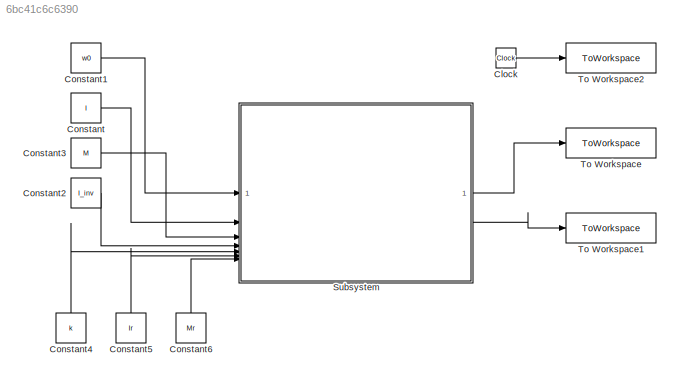
MODEL slx_6bc41c6c6390
KIND model
CONFIG AbsTol = auto
CONFIG EnableMultiTasking = off
CONFIG FixedStep = auto
CONFIG MaxStep = auto
CONFIG MinStep = auto
CONFIG RelTol = 1e-9
CONFIG SampleTimeConstraint = Unconstrained
CONFIG SolverName = VariableStepAuto
CONFIG StartTime = 0.0
CONFIG StopTime = stoptime
BLOCK [Clock] Clock
BLOCK [Constant] Constant
  Value = I
  VectorParams1D = off
BLOCK [Constant] Constant1
  Value = w0
  VectorParams1D = off
BLOCK [Constant] Constant2
  Value = I_inv
  VectorParams1D = off
BLOCK [Constant] Constant3
  Value = M
  VectorParams1D = off
BLOCK [Constant] Constant4
  NameLocation = right
  Value = k
  VectorParams1D = off
BLOCK [Constant] Constant5
  NameLocation = right
  Value = Ir
BLOCK [Constant] Constant6
  NameLocation = right
  Value = Mr
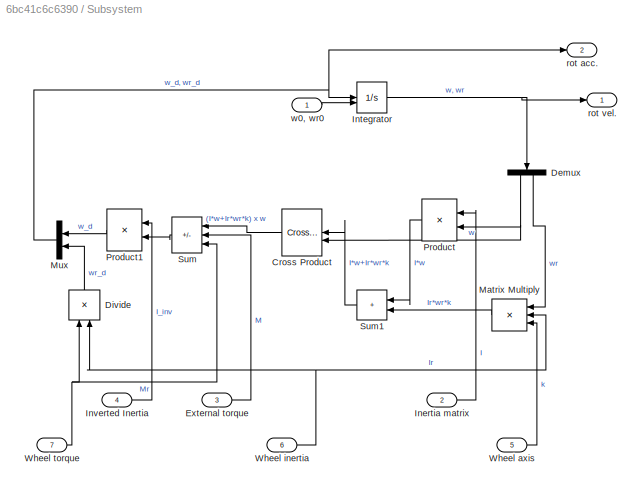
BLOCK [SubSystem] Subsystem
BLOCK [Reference] Subsystem/Cross Product  REF=matrix_library/Cross Product
  LibrarySourceBlock = simulink/Matrix\nOperations/Cross Product
  NameLocation = top
  SourceBlock = matrix_library/Cross Product
  SourceType = CrossProduct
BLOCK [Demux] Subsystem/Demux
  NameLocation = left
  Outputs = 2
BLOCK [Product] Subsystem/Divide
  Inputs = */
  NameLocation = right
BLOCK [Inport] Subsystem/External torque
  Port = 3
BLOCK [Inport] Subsystem/Inertia matrix
  Port = 2
BLOCK [Integrator] Subsystem/Integrator
  InitialConditionSource = external
BLOCK [Inport] Subsystem/Inverted Inertia
  Port = 4
BLOCK [Product] Subsystem/Matrix Multiply
  Inputs = 3
  NameLocation = top
BLOCK [Mux] Subsystem/Mux
  DisplayOption = bar
  Inputs = 2
  NameLocation = top
BLOCK [Product] Subsystem/Product
  Multiplication = Matrix(*)
  NameLocation = top
BLOCK [Product] Subsystem/Product1
  Multiplication = Matrix(*)
  NameLocation = top
BLOCK [Sum] Subsystem/Sum
  IconShape = rectangular
  Inputs = |++-
  NameLocation = top
BLOCK [Sum] Subsystem/Sum1
  IconShape = rectangular
  Inputs = |++
  NameLocation = top
BLOCK [Inport] Subsystem/Wheel axis
  Port = 5
BLOCK [Inport] Subsystem/Wheel inertia
  Port = 6
BLOCK [Inport] Subsystem/Wheel torque
  Port = 7
BLOCK [Outport] Subsystem/rot acc.
  Port = 2
BLOCK [Outport] Subsystem/rot vel.
BLOCK [Inport] Subsystem/w0, wr0
BLOCK [ToWorkspace] To Workspace
  FixptAsFi = on
  MaxDataPoints = inf
  SampleTime = -1
  VariableName = w
BLOCK [ToWorkspace] To Workspace1
  FixptAsFi = on
  MaxDataPoints = inf
  SampleTime = -1
  VariableName = w_d
BLOCK [ToWorkspace] To Workspace2
  FixptAsFi = on
  MaxDataPoints = inf
  SampleTime = -1
  VariableName = time
LINE Clock:1 -> To Workspace2:1
LINE Constant1:1 -> Subsystem:1
LINE Constant2:1 -> Subsystem:4
LINE Constant3:1 -> Subsystem:3
LINE Constant4:1 -> Subsystem:5
LINE Constant5:1 -> Subsystem:6
LINE Constant6:1 -> Subsystem:7
LINE Constant:1 -> Subsystem:2
LINE Subsystem/Cross Product:1 -> Subsystem/Sum:1
NET Subsystem/Demux:1 -> Subsystem/Cross Product:2, Subsystem/Product:2
LINE Subsystem/Demux:2 -> Subsystem/Matrix Multiply:1
LINE Subsystem/Divide:1 -> Subsystem/Mux:2
LINE Subsystem/External torque:1 -> Subsystem/Sum:2
LINE Subsystem/Inertia matrix:1 -> Subsystem/Product:1
NET Subsystem/Integrator:1 -> Subsystem/Demux:1, Subsystem/rot vel.:1
LINE Subsystem/Inverted Inertia:1 -> Subsystem/Product1:1
LINE Subsystem/Matrix Multiply:1 -> Subsystem/Sum1:2
NET Subsystem/Mux:1 -> Subsystem/Integrator:1, Subsystem/rot acc.:1
LINE Subsystem/Product1:1 -> Subsystem/Mux:1
LINE Subsystem/Product:1 -> Subsystem/Sum1:1
LINE Subsystem/Sum1:1 -> Subsystem/Cross Product:1
LINE Subsystem/Sum:1 -> Subsystem/Product1:2
LINE Subsystem/Wheel axis:1 -> Subsystem/Matrix Multiply:3
NET Subsystem/Wheel inertia:1 -> Subsystem/Divide:2, Subsystem/Matrix Multiply:2
NET Subsystem/Wheel torque:1 -> Subsystem/Divide:1, Subsystem/Sum:3
LINE Subsystem/w0, wr0:1 -> Subsystem/Integrator:2
LINE Subsystem:1 -> To Workspace:1
LINE Subsystem:2 -> To Workspace1:1
note: NET lines group one-source signal fan-out (src -> all destinations, sorted); 1:1 wires keep LINE
